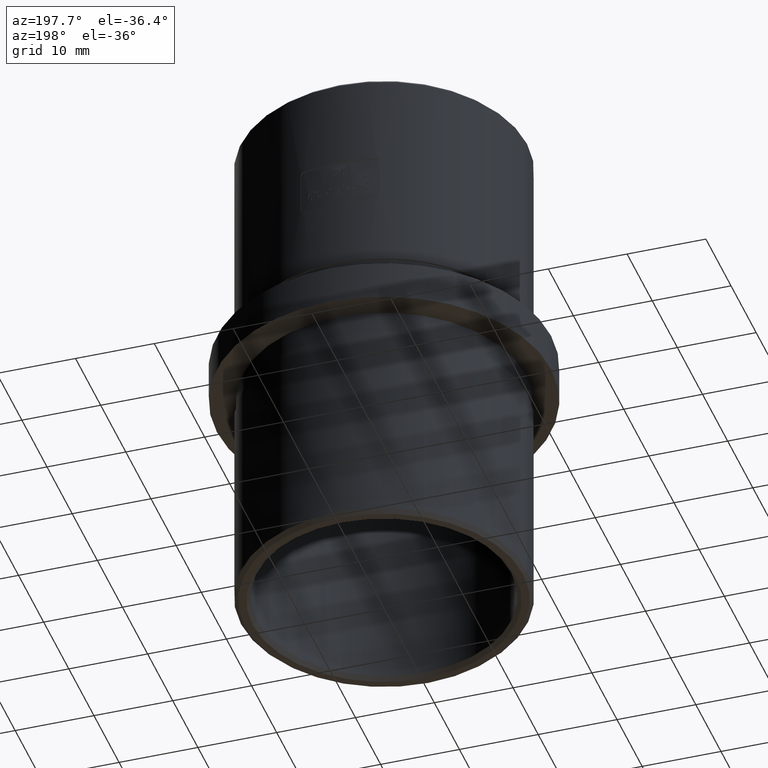
[diagram: clean part render]
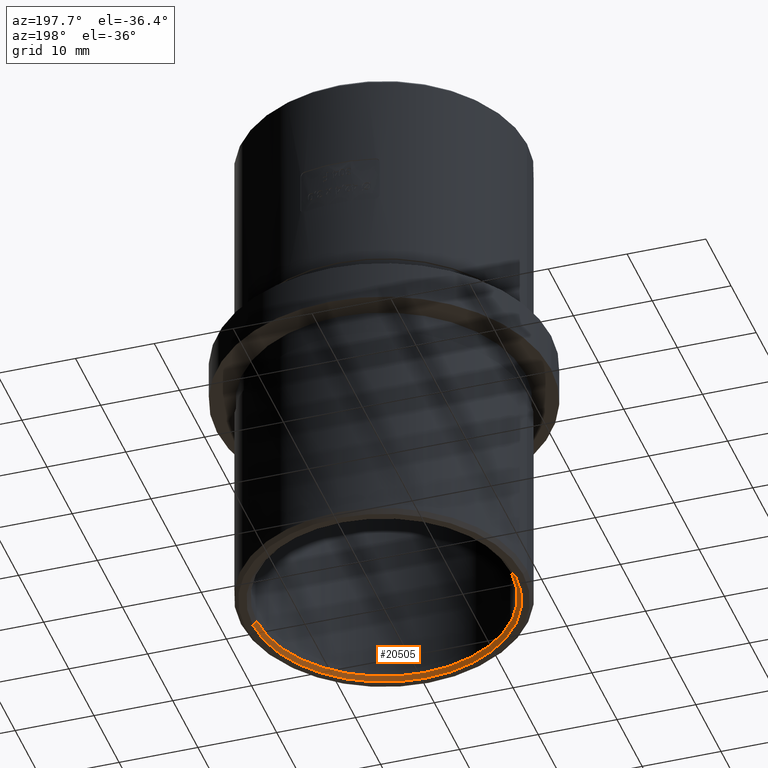
[diagram: same view with one face highlighted and labeled with its STEP entity id]
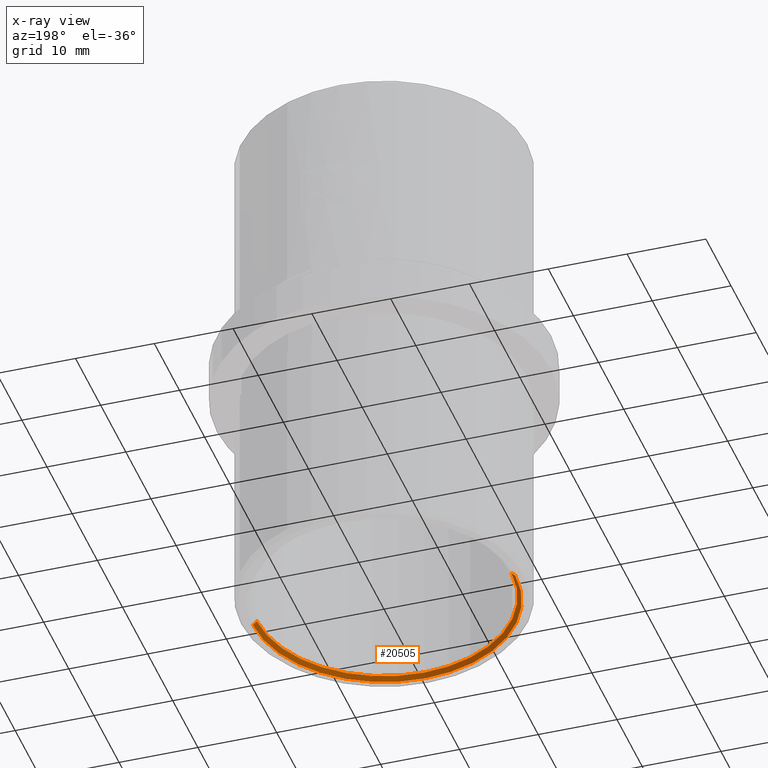
[diagram: x-ray of the same camera — body ghosted, the highlighted face saturated]
A machine part, auxiliary view. The second image highlights one B-rep face of the part: STEP entity #20505.
The next image is the same camera in x-ray: the body ghosted, the highlighted face saturated — about 0% of this face is hidden behind the body in this view.
In plain terms, the highlighted conical surface has half-angle 45 deg.
Its self-contained STEP definition (entity closure, byte-faithful):
#270 = ORIENTED_EDGE ( 'NONE', *, *, #18547, .T. ) ;
#374 = CARTESIAN_POINT ( 'NONE',  ( 16.64999999999999100, 2.039036920580342000E-015, -32.50000000000000000 ) ) ;
#569 = CIRCLE ( 'NONE', #4888, 16.64999999999999100 ) ;
#1073 = CARTESIAN_POINT ( 'NONE',  ( 0.0000000000000000000, 0.0000000000000000000, -32.50000000000000000 ) ) ;
#2025 = AXIS2_PLACEMENT_3D ( 'NONE', #1073, #2602, #21250 ) ;
#2602 = DIRECTION ( 'NONE',  ( -0.0000000000000000000, -0.0000000000000000000, -1.000000000000000000 ) ) ;
#2613 = CARTESIAN_POINT ( 'NONE',  ( -16.64999999999999100, 0.0000000000000000000, -32.50000000000000000 ) ) ;
#2654 = CARTESIAN_POINT ( 'NONE',  ( 16.14999999999999900, 0.0000000000000000000, -32.00000000000000000 ) ) ;
#3861 = LINE ( 'NONE', #19687, #8817 ) ;
#3998 = VERTEX_POINT ( 'NONE', #2613 ) ;
#4888 = AXIS2_PLACEMENT_3D ( 'NONE', #11833, #11770, #6777 ) ;
#4940 = CONICAL_SURFACE ( 'NONE', #2025, 16.64999999999999100, 0.7853981633974415100 ) ;
#6314 = DIRECTION ( 'NONE',  ( -0.7071067811865426900, 0.0000000000000000000, -0.7071067811865524600 ) ) ;
#6713 = EDGE_CURVE ( 'NONE', #19415, #10583, #21299, .T. ) ;
#6777 = DIRECTION ( 'NONE',  ( -1.000000000000000000, 0.0000000000000000000, 0.0000000000000000000 ) ) ;
#7028 = DIRECTION ( 'NONE',  ( 0.7071067811865426900, 8.659560562354874900E-017, -0.7071067811865524600 ) ) ;
#8229 = EDGE_LOOP ( 'NONE', ( #20077, #270, #9076, #17820 ) ) ;
#8817 = VECTOR ( 'NONE', #6314, 1000.000000000000000 ) ;
#9076 = ORIENTED_EDGE ( 'NONE', *, *, #10260, .F. ) ;
#10260 = EDGE_CURVE ( 'NONE', #3998, #15778, #569, .T. ) ;
#10583 = VERTEX_POINT ( 'NONE', #14600 ) ;
#11770 = DIRECTION ( 'NONE',  ( -0.0000000000000000000, -0.0000000000000000000, 1.000000000000000000 ) ) ;
#11833 = CARTESIAN_POINT ( 'NONE',  ( 0.0000000000000000000, 0.0000000000000000000, -32.50000000000000000 ) ) ;
#14600 = CARTESIAN_POINT ( 'NONE',  ( -16.14999999999999900, 1.977804580622975200E-015, -32.00000000000000000 ) ) ;
#14805 = DIRECTION ( 'NONE',  ( -1.000000000000000000, 0.0000000000000000000, 0.0000000000000000000 ) ) ;
#15778 = VERTEX_POINT ( 'NONE', #16145 ) ;
#15867 = VECTOR ( 'NONE', #7028, 1000.000000000000000 ) ;
#16112 = LINE ( 'NONE', #374, #15867 ) ;
#16145 = CARTESIAN_POINT ( 'NONE',  ( 16.64999999999999100, 2.039036920580342000E-015, -32.50000000000000000 ) ) ;
#17820 = ORIENTED_EDGE ( 'NONE', *, *, #21159, .F. ) ;
#18547 = EDGE_CURVE ( 'NONE', #19415, #15778, #16112, .T. ) ;
#19029 = AXIS2_PLACEMENT_3D ( 'NONE', #19866, #21335, #14805 ) ;
#19415 = VERTEX_POINT ( 'NONE', #2654 ) ;
#19687 = CARTESIAN_POINT ( 'NONE',  ( -16.64999999999999100, 0.0000000000000000000, -32.50000000000000000 ) ) ;
#19866 = CARTESIAN_POINT ( 'NONE',  ( 0.0000000000000000000, 0.0000000000000000000, -32.00000000000000000 ) ) ;
#20077 = ORIENTED_EDGE ( 'NONE', *, *, #6713, .F. ) ;
#20505 = ADVANCED_FACE ( 'NONE', ( #20679 ), #4940, .F. ) ;
#20679 = FACE_OUTER_BOUND ( 'NONE', #8229, .T. ) ;
#21159 = EDGE_CURVE ( 'NONE', #10583, #3998, #3861, .T. ) ;
#21250 = DIRECTION ( 'NONE',  ( -1.000000000000000000, 0.0000000000000000000, 0.0000000000000000000 ) ) ;
#21299 = CIRCLE ( 'NONE', #19029, 16.14999999999999900 ) ;
#21335 = DIRECTION ( 'NONE',  ( -0.0000000000000000000, -0.0000000000000000000, -1.000000000000000000 ) ) ;